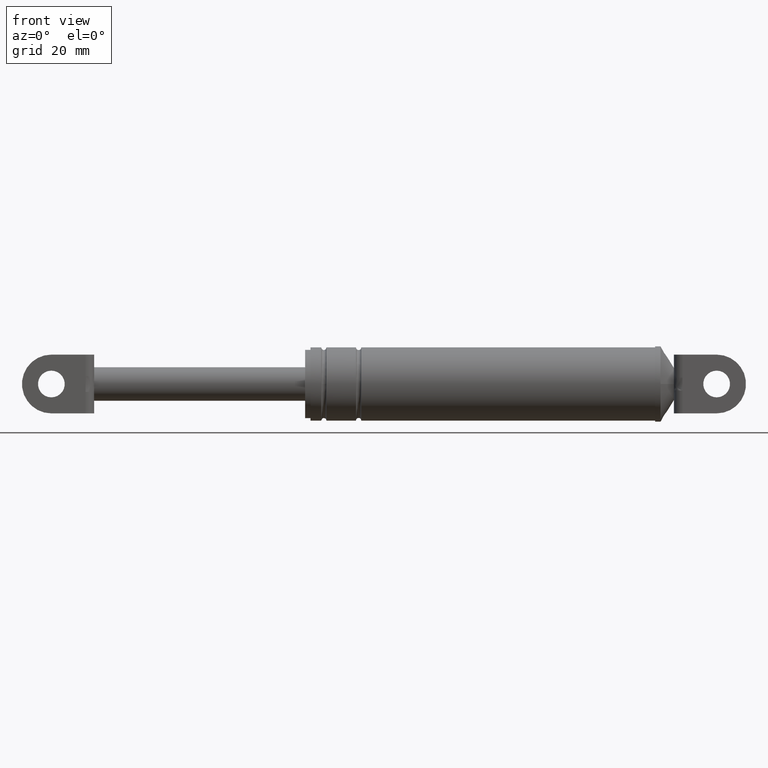
[diagram: clean part render]
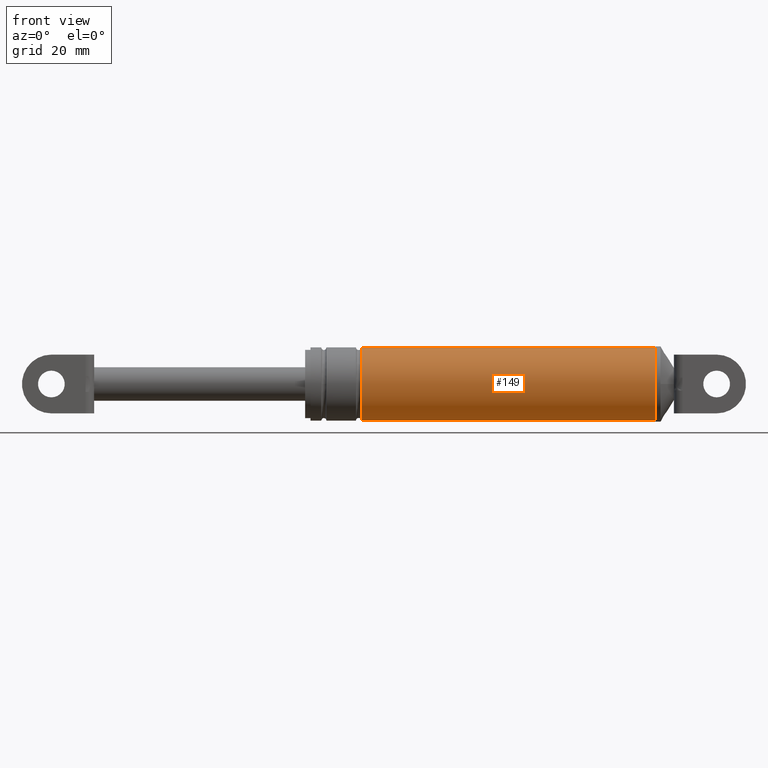
[diagram: same view with one face highlighted and labeled with its STEP entity id]
A machine part, front view. The second image highlights one B-rep face of the part: STEP entity #149.
In plain terms, the highlighted cylindrical surface (partial cylindrical patch) has radius 13.7 mm, axis along (1, 0, 0).
Its self-contained STEP definition (entity closure, byte-faithful):
#149=ADVANCED_FACE('',(#553),#552,.T.);
#552=CYLINDRICAL_SURFACE('',#1188,1.37000000000E+001);
#553=FACE_OUTER_BOUND('',#1189,.T.);
#1185=CARTESIAN_POINT('',(0.00000000000E+000,0.00000000000E+000,1.70729320502E+002));
#1186=DIRECTION('',(1.00000000000E+000,-0.00000000000E+000,-0.00000000000E+000));
#1187=DIRECTION('',(0.00000000000E+000,0.00000000000E+000,-1.00000000000E+000));
#1188=AXIS2_PLACEMENT_3D('',#1185,#1186,#1187);
#1189=EDGE_LOOP('',(#1562,#1563,#1564,#1565));
#1562=ORIENTED_EDGE('',*,*,#1787,.F.);
#1563=ORIENTED_EDGE('',*,*,#1796,.T.);
#1564=ORIENTED_EDGE('',*,*,#1762,.T.);
#1565=ORIENTED_EDGE('',*,*,#1797,.F.);
#1762=EDGE_CURVE('',#2280,#2281,#2282,.T.);
#1787=EDGE_CURVE('',#2411,#2410,#2444,.T.);
#1796=EDGE_CURVE('',#2411,#2280,#2502,.T.);
#1797=EDGE_CURVE('',#2410,#2281,#2508,.T.);
#2280=VERTEX_POINT('',#3218);
#2281=VERTEX_POINT('',#3219);
#2282=CIRCLE('',#3223,1.37000000000E+001);
#2410=VERTEX_POINT('',#3294);
#2411=VERTEX_POINT('',#3295);
#2444=CIRCLE('',#3325,1.37000000000E+001);
#2502=(BOUNDED_CURVE() B_SPLINE_CURVE(1,(#3354,#3355),.UNSPECIFIED.,.F.,.F.) B_SPLINE_CURVE_WITH_KNOTS((2,2),(7.69230771804E-002,9.23076923214E-001),.UNSPECIFIED.) CURVE() GEOMETRIC_REPRESENTATION_ITEM() RATIONAL_B_SPLINE_CURVE((1.00000000000E+000,1.00000000000E+000)) REPRESENTATION_ITEM('') );
#2508=(BOUNDED_CURVE() B_SPLINE_CURVE(1,(#3356,#3357),.UNSPECIFIED.,.F.,.F.) B_SPLINE_CURVE_WITH_KNOTS((2,2),(7.69230769231E-002,9.23076923077E-001),.UNSPECIFIED.) CURVE() GEOMETRIC_REPRESENTATION_ITEM() RATIONAL_B_SPLINE_CURVE((7.50000000000E-001,7.50000000000E-001)) REPRESENTATION_ITEM('') );
#3218=CARTESIAN_POINT('',(3.14446942787E+002,0.00000000000E+000,1.57029320502E+002));
#3219=CARTESIAN_POINT('',(3.14446942787E+002,0.00000000000E+000,1.84429320502E+002));
#3220=CARTESIAN_POINT('',(3.14446942787E+002,0.00000000000E+000,1.70729320502E+002));
#3221=DIRECTION('',(-1.00000000000E+000,0.00000000000E+000,0.00000000000E+000));
#3222=DIRECTION('',(0.00000000000E+000,-1.22460635382E-016,1.00000000000E+000));
#3223=AXIS2_PLACEMENT_3D('',#3220,#3221,#3222);
#3294=CARTESIAN_POINT('',(2.04446942787E+002,0.00000000000E+000,1.84429320502E+002));
#3295=CARTESIAN_POINT('',(2.04446942787E+002,0.00000000000E+000,1.57029320502E+002));
#3322=CARTESIAN_POINT('',(2.04446942787E+002,0.00000000000E+000,1.70729320502E+002));
#3323=DIRECTION('',(-1.00000000000E+000,0.00000000000E+000,0.00000000000E+000));
#3324=DIRECTION('',(0.00000000000E+000,-1.22460635382E-016,1.00000000000E+000));
#3325=AXIS2_PLACEMENT_3D('',#3322,#3323,#3324);
#3354=CARTESIAN_POINT('',(2.04446942820E+002,0.00000000000E+000,1.57029320502E+002));
#3355=CARTESIAN_POINT('',(3.14446942805E+002,0.00000000000E+000,1.57029320502E+002));
#3356=CARTESIAN_POINT('',(2.04446942787E+002,-5.92118946467E-016,1.84429320502E+002));
#3357=CARTESIAN_POINT('',(3.14446942787E+002,-5.92118946467E-016,1.84429320502E+002));